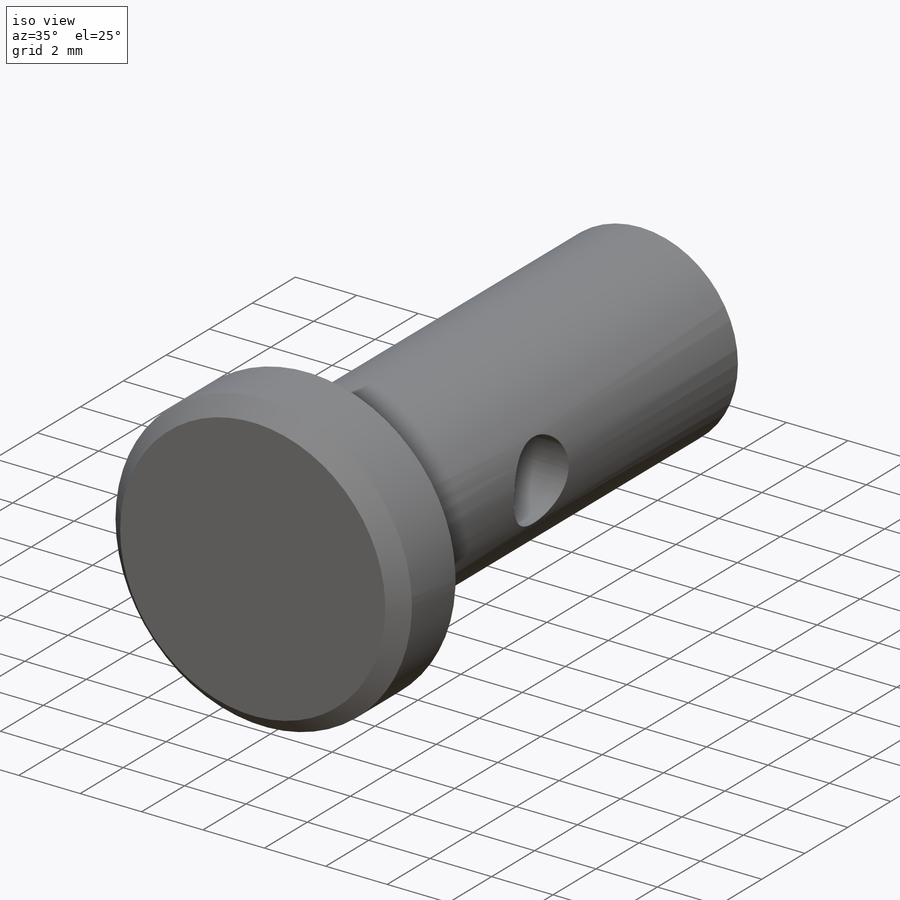
[diagram: iso view]
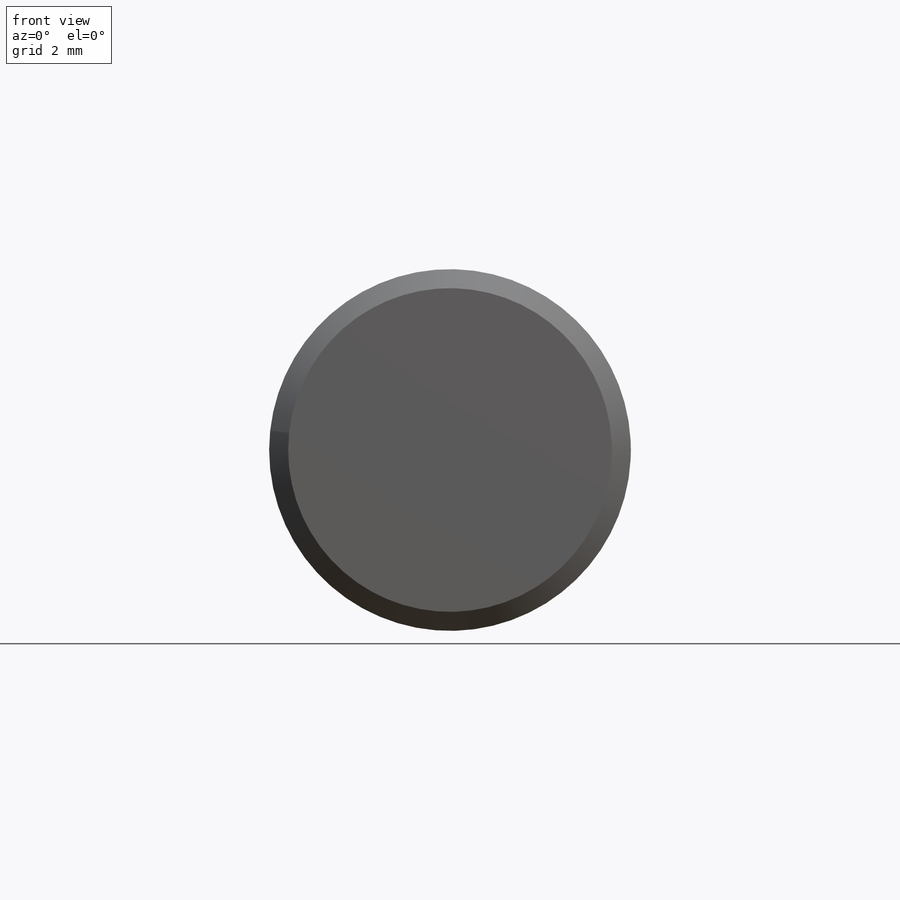
[diagram: front view]
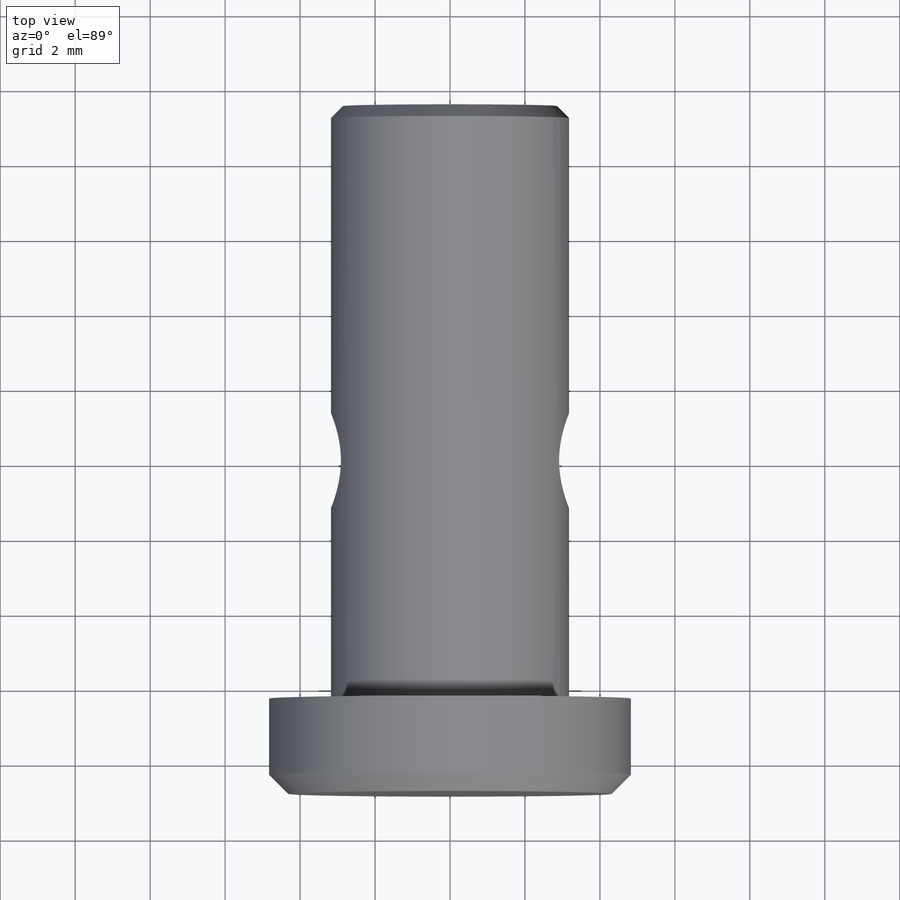
[diagram: top view]
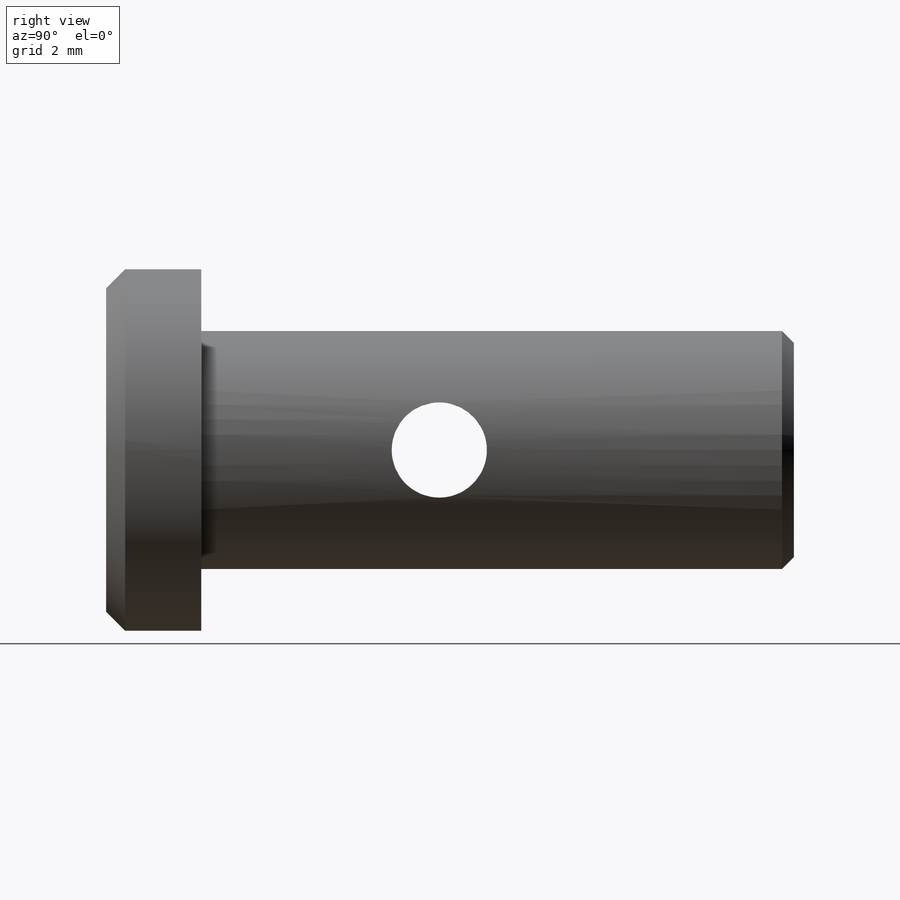
[diagram: right view]
SOLIDWORKS PART (.sldprt)
format: sldprt  version: not decoded by parser v0  size: 284,672 bytes
history: native  units: mm
features: sketch x5, extrude x2, chamfer x2, material x1, plane x1, cut_extrude x1 (+14 scaffold rows collapsed)
feature tree (26):
  scaffold x14  (default folders/planes/origin — collapsed)
  material  "Material <not specified>"
  sketch  "Sketch1"  dims[dia=6.35mm]
  extrude  "Extrude1"  Depth=14.2875mm Lg=14.2875mm
  sketch  "Sketch2"  dims[head dia=9.652mm]
  extrude  "Extrude2"  Depth=2.54mm head ht=2.54mm
  chamfer  "Chamfer1"  Distance=0.508mm Angle=45deg
  sketch  "Sketch3"  dims[hole dia=1.8288mm useable Lg=13.081mm]
  chamfer  "Chamfer2"  Distance=0.3175mm Angle=45deg
  plane  "Plane1"
  sketch  "Sketch8"
  sketch  "Sketch9"  dims[D1=2.54mm D2=6.35mm]
  cut_extrude  "Cut-Extrude1"  Depth=3.175mm
decode coverage: 9 of 10 modeling features carry decoded parameters
note: suppression state not decoded; provenance and decode notes live in map.json
